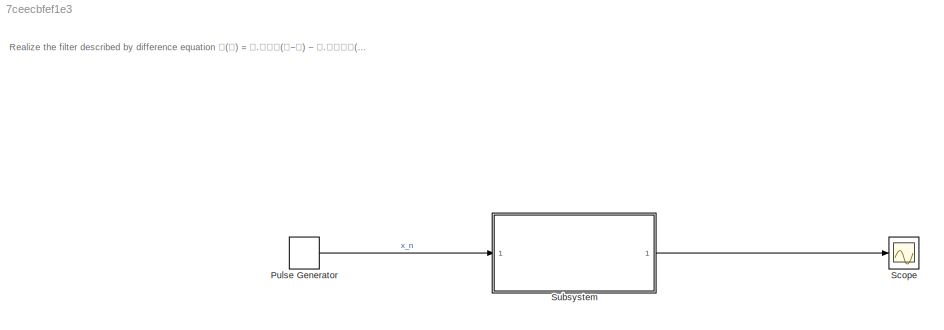
MODEL slx_7ceecbfef1e3
KIND model
CONFIG AbsTol = auto
CONFIG EnableMultiTasking = off
CONFIG FixedStep = auto
CONFIG MaxStep = auto
CONFIG MinStep = auto
CONFIG RelTol = 1e-3
CONFIG SampleTimeConstraint = Unconstrained
CONFIG Solver = VariableStepAuto
CONFIG SolverName = VariableStepAuto
CONFIG StartTime = 0.0
CONFIG StopTime = 10.0
BLOCK [DiscretePulseGenerator] Pulse Generator
  Period = 10
  Ports = [0, 1]
  PulseType = Time based
  PulseWidth = 5
BLOCK [Scope] Scope
  Floating = off
  NumInputPorts = 1
  Ports = [1]
  ScopeSpecificationString = Simulink.scopes.TimeScopeBlockCfg('CurrentConfiguration', extmgr.ConfigurationSet(extmgr.Configuration('Core','General UI',true),extmgr.Configuration('Core','Source UI',true),extmgr.Configuration('Sources','WiredSimulink',true),extmgr.Configuration('Visuals','Time Domain',true,'SerializedDisplays',{struct('MinYLimReal','-0.55781','MaxYLimReal','2.39531','YLabelReal','','MinYLimMag','0.00000','MaxY...<+1323ch>
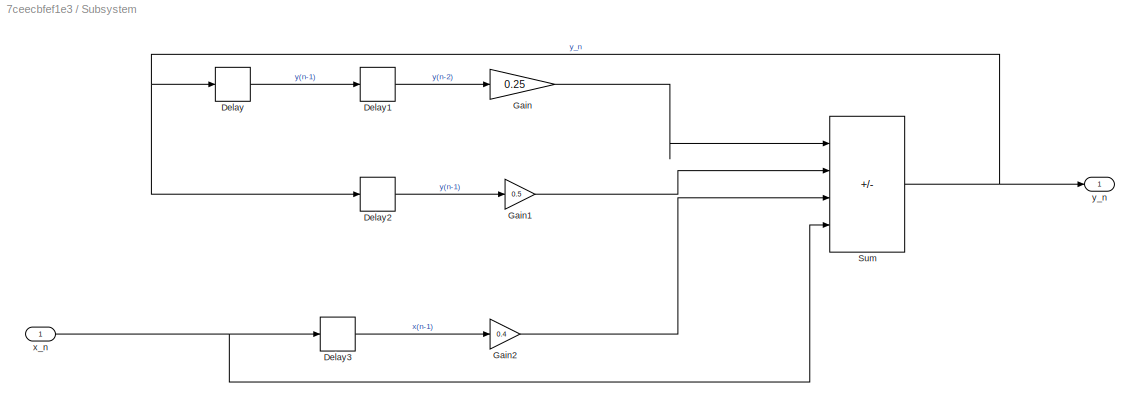
BLOCK [SubSystem] Subsystem
  Ports = [1, 1]
  RequestExecContextInheritance = off
  TreatAsAtomicUnit = on
BLOCK [Delay] Subsystem/Delay
  DelayLength = 1
  InputPortMap = u0
  Ports = [1, 1]
BLOCK [Delay] Subsystem/Delay1
  DelayLength = 1
  InputPortMap = u0
  Ports = [1, 1]
BLOCK [Delay] Subsystem/Delay2
  DelayLength = 1
  InputPortMap = u0
  Ports = [1, 1]
BLOCK [Delay] Subsystem/Delay3
  DelayLength = 1
  InputPortMap = u0
  Ports = [1, 1]
BLOCK [Gain] Subsystem/Gain
  Gain = 0.25
BLOCK [Gain] Subsystem/Gain1
  Gain = 0.5
BLOCK [Gain] Subsystem/Gain2
  Gain = 0.4
BLOCK [Sum] Subsystem/Sum
  IconShape = rectangular
  Inputs = |-+++
  Ports = [4, 1]
BLOCK [Inport] Subsystem/x_n
BLOCK [Outport] Subsystem/y_n
ANNOTATION (root): Realize the filter described by difference equation 𝐲(𝐧) = 𝟎.𝟓∗𝐲(𝐧−𝟏) − 𝟎.𝟐𝟓∗𝐲(𝐧−𝟐) + 𝐱(𝐧) + 𝟎.𝟒∗𝐱(𝐧−𝟏)
LINE Pulse Generator:1 -> Subsystem:1
LINE Subsystem/Delay1:1 -> Subsystem/Gain:1
LINE Subsystem/Delay2:1 -> Subsystem/Gain1:1
LINE Subsystem/Delay3:1 -> Subsystem/Gain2:1
LINE Subsystem/Delay:1 -> Subsystem/Delay1:1
LINE Subsystem/Gain1:1 -> Subsystem/Sum:2
LINE Subsystem/Gain2:1 -> Subsystem/Sum:3
LINE Subsystem/Gain:1 -> Subsystem/Sum:1
NET Subsystem/Sum:1 -> Subsystem/Delay2:1, Subsystem/Delay:1, Subsystem/y_n:1
NET Subsystem/x_n:1 -> Subsystem/Delay3:1, Subsystem/Sum:4
LINE Subsystem:1 -> Scope:1
note: NET lines group one-source signal fan-out (src -> all destinations, sorted); 1:1 wires keep LINE
